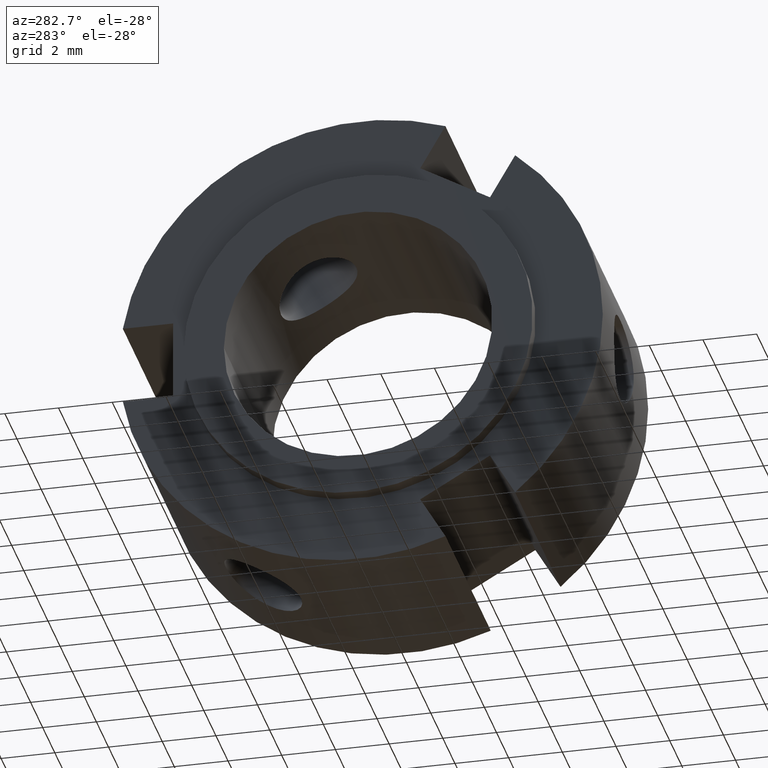
[diagram: clean part render]
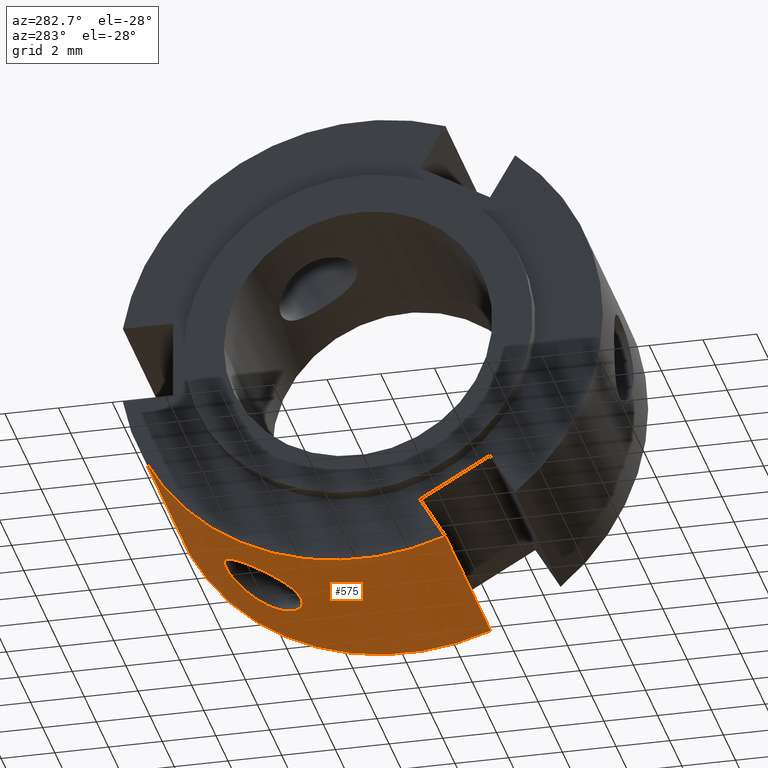
[diagram: same view with one face highlighted and labeled with its STEP entity id]
A machine part, auxiliary view. The second image highlights one B-rep face of the part: STEP entity #575.
In plain terms, the highlighted cylindrical surface (partial cylindrical patch) has radius 9 mm, axis along (1, 0, 0).
Its self-contained STEP definition (entity closure, byte-faithful):
#113=CARTESIAN_POINT('',(0.499999999999998,-3.138021731648057,-8.435213074469697));
#114=VERTEX_POINT('',#113);
#123=CARTESIAN_POINT('',(7.999999999999997,-3.138021731648057,-8.435213074469697));
#124=VERTEX_POINT('',#123);
#125=CARTESIAN_POINT('',(7.999999999999997,-3.138021731648057,-8.435213074469694));
#126=DIRECTION('',(-1.0,0.0,0.0));
#127=VECTOR('',#126,7.499999999999999);
#128=LINE('',#125,#127);
#129=EDGE_CURVE('',#124,#114,#128,.T.);
#365=CARTESIAN_POINT('',(3.999999999999996,3.022581042715149,-8.477263935977158));
#366=VERTEX_POINT('',#365);
#367=CARTESIAN_POINT('',(3.999999999999995,3.022581042715150,-8.477263935977158));
#368=CARTESIAN_POINT('',(4.204019456087717,3.022581042715150,-8.477263935977158));
#369=CARTESIAN_POINT('',(4.421325716287628,3.061862348792805,-8.463571768456793));
#370=CARTESIAN_POINT('',(4.820570121582453,3.219213712380591,-8.404981326392646));
#371=CARTESIAN_POINT('',(5.002547533836670,3.337051960267012,-8.359728844220008));
#372=CARTESIAN_POINT('',(5.289887393896619,3.604343285699137,-8.248011280170980));
#373=CARTESIAN_POINT('',(5.414568672892385,3.771736661322892,-8.173985792391155));
#374=CARTESIAN_POINT('',(5.580137162663212,4.131305098950103,-7.998272273054775));
#375=CARTESIAN_POINT('',(5.620999999999996,4.323320432974002,-7.896234629642709));
#376=CARTESIAN_POINT('',(5.620999999999996,4.676679567025991,-7.692222638477180));
#377=CARTESIAN_POINT('',(5.580137162663210,4.861054425375088,-7.576951303002362));
#378=CARTESIAN_POINT('',(5.414568672892386,5.193011015722364,-7.353412661286307));
#379=CARTESIAN_POINT('',(5.289887393896619,5.340815656479105,-7.245458489460818));
#380=CARTESIAN_POINT('',(5.002547533836670,5.571211567710543,-7.069836193449897));
#381=CARTESIAN_POINT('',(4.820570121582454,5.669320490799558,-6.990411518329129));
#382=CARTESIAN_POINT('',(4.421325716287629,5.798736983839965,-6.883436461174057));
#383=CARTESIAN_POINT('',(4.204019456087718,5.830235401784299,-6.856263935977158));
#384=CARTESIAN_POINT('',(3.795980543912274,5.830235401784299,-6.856263935977158));
#385=CARTESIAN_POINT('',(3.578674283712363,5.798736983839965,-6.883436461174057));
#386=CARTESIAN_POINT('',(3.179429878417537,5.669320490799558,-6.990411518329129));
#387=CARTESIAN_POINT('',(2.997452466163320,5.571211567710543,-7.069836193449897));
#388=CARTESIAN_POINT('',(2.710112606103373,5.340815656479105,-7.245458489460818));
#389=CARTESIAN_POINT('',(2.585431327107605,5.193011015722364,-7.353412661286307));
#390=CARTESIAN_POINT('',(2.419862837336780,4.861054425375088,-7.576951303002362));
#391=CARTESIAN_POINT('',(2.378999999999996,4.676679567025991,-7.692222638477180));
#392=CARTESIAN_POINT('',(2.378999999999996,4.323320432974002,-7.896234629642709));
#393=CARTESIAN_POINT('',(2.419862837336780,4.131305098950102,-7.998272273054774));
#394=CARTESIAN_POINT('',(2.585431327107605,3.771736661322892,-8.173985792391154));
#395=CARTESIAN_POINT('',(2.710112606103373,3.604343285699137,-8.248011280170980));
#396=CARTESIAN_POINT('',(2.997452466163322,3.337051960267012,-8.359728844220008));
#397=CARTESIAN_POINT('',(3.179429878417539,3.219213712380592,-8.404981326392646));
#398=CARTESIAN_POINT('',(3.578674283712365,3.061862348792805,-8.463571768456793));
#399=CARTESIAN_POINT('',(3.795980543912274,3.022581042715150,-8.477263935977158));
#400=CARTESIAN_POINT('',(3.999999999999995,3.022581042715150,-8.477263935977158));
#401=B_SPLINE_CURVE_WITH_KNOTS('',3,(#367,#368,#369,#370,#371,#372,#373,#374,#375,#376,#377,#378,#379,#380,#381,#382,#383,#384,#385,#386,#387,#388,#389,#390,#391,#392,#393,#394,#395,#396,#397,#398,#399,#400),.UNSPECIFIED.,.T.,.U.,(4,2,2,2,2,2,2,2,2,2,2,2,2,2,2,2,4),(0.0,0.061205836826317,0.122411673652633,0.183615271002292,0.244818868351950,0.306022465701609,0.367226063051267,0.428431899877584,0.489637736703901,0.550843573530217,0.612049410356534,0.673253007706192,0.734456605055851,0.795660202405510,0.856863799755168,0.918069636581485,0.979275473407801),.UNSPECIFIED.);
#402=EDGE_CURVE('',#366,#366,#401,.T.);
#456=CARTESIAN_POINT('',(7.999999999999997,8.874119674649421,-1.500000000000000));
#457=VERTEX_POINT('',#456);
#458=CARTESIAN_POINT('',(7.999999999999996,0.0,0.0));
#459=DIRECTION('',(1.0,0.0,0.0));
#460=DIRECTION('',(0.0,1.0,0.0));
#461=AXIS2_PLACEMENT_3D('',#458,#459,#460);
#462=CIRCLE('',#461,8.999999999999998);
#463=EDGE_CURVE('',#124,#457,#462,.T.);
#548=CARTESIAN_POINT('',(4.249999999999997,0.0,0.0));
#549=DIRECTION('',(1.0,0.0,0.0));
#550=DIRECTION('',(0.0,1.0,0.0));
#551=AXIS2_PLACEMENT_3D('',#548,#549,#550);
#552=CYLINDRICAL_SURFACE('',#551,8.999999999999996);
#553=ORIENTED_EDGE('',*,*,#129,.T.);
#554=CARTESIAN_POINT('',(0.499999999999998,8.874119674649421,-1.500000000000000));
#555=VERTEX_POINT('',#554);
#556=CARTESIAN_POINT('',(0.499999999999998,0.0,0.0));
#557=DIRECTION('',(1.0,0.0,0.0));
#558=DIRECTION('',(0.0,1.0,0.0));
#559=AXIS2_PLACEMENT_3D('',#556,#557,#558);
#560=CIRCLE('',#559,8.999999999999996);
#561=EDGE_CURVE('',#114,#555,#560,.T.);
#562=ORIENTED_EDGE('',*,*,#561,.T.);
#563=CARTESIAN_POINT('',(0.499999999999998,8.874119674649421,-1.500000000000000));
#564=DIRECTION('',(1.0,0.0,0.0));
#565=VECTOR('',#564,7.499999999999999);
#566=LINE('',#563,#565);
#567=EDGE_CURVE('',#555,#457,#566,.T.);
#568=ORIENTED_EDGE('',*,*,#567,.T.);
#569=ORIENTED_EDGE('',*,*,#463,.F.);
#570=EDGE_LOOP('',(#553,#562,#568,#569));
#571=FACE_OUTER_BOUND('',#570,.T.);
#572=ORIENTED_EDGE('',*,*,#402,.T.);
#573=EDGE_LOOP('',(#572));
#574=FACE_BOUND('',#573,.T.);
#575=ADVANCED_FACE('',(#571,#574),#552,.T.);